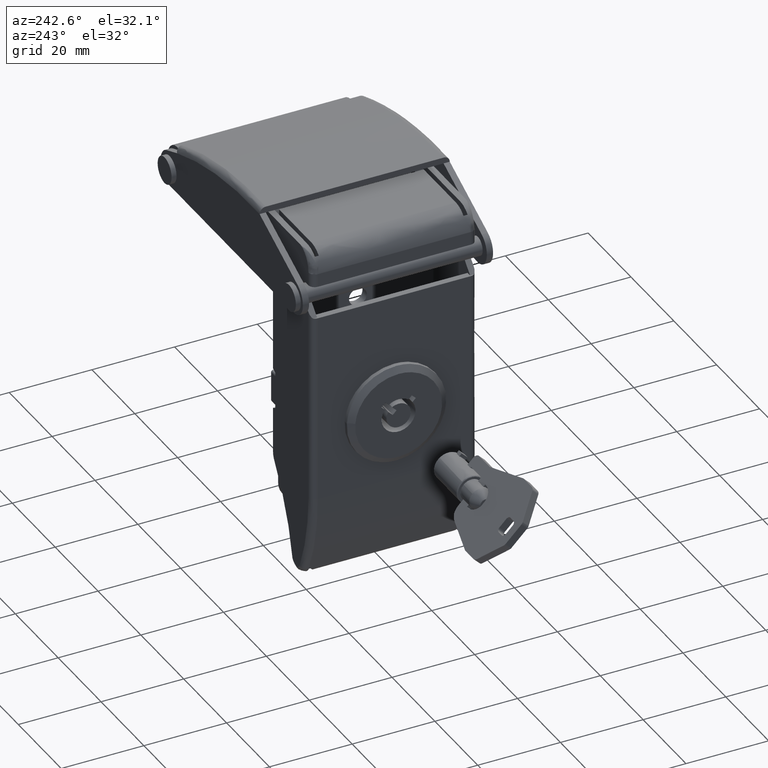
[diagram: clean part render]
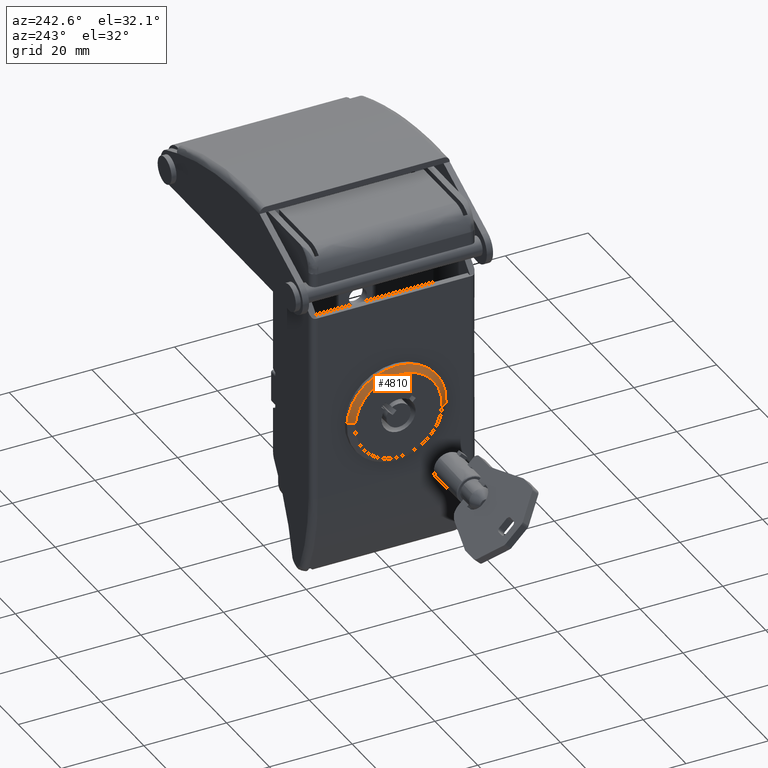
[diagram: same view with one face highlighted and labeled with its STEP entity id]
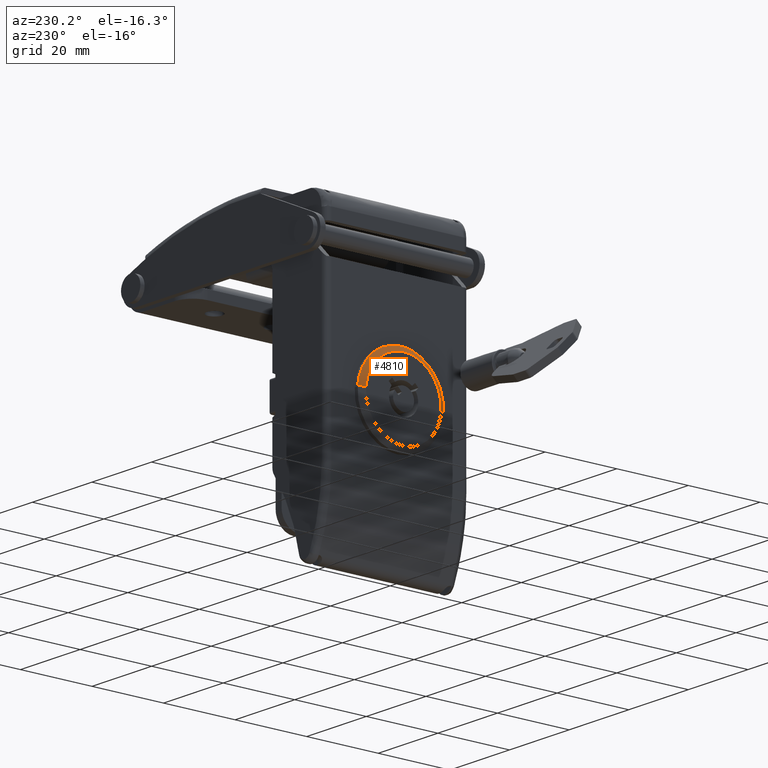
[diagram: same view with one face highlighted and labeled with its STEP entity id]
A machine part, auxiliary view. The second image highlights one B-rep face of the part: STEP entity #4810.
A second angle (auxiliary view) of the same face is appended — the face is thin or edge-on in the first view.
In plain terms, the highlighted face is a freeform B-spline surface patch.
Its self-contained STEP definition (entity closure, byte-faithful):
#4530=CARTESIAN_POINT('',(-4.500225952994209,1.008971E-011,-23.799992232592562));
#4531=VERTEX_POINT('',#4530);
#4532=CARTESIAN_POINT('',(-4.500225952972309,10.467632004220739,-33.476171727217277));
#4533=VERTEX_POINT('',#4532);
#4534=CARTESIAN_POINT('',(-4.500225952994209,1.008971E-011,-23.799992232592562));
#4535=CARTESIAN_POINT('',(-4.500225952983259,9.706100162223267,-23.799992232591272));
#4536=CARTESIAN_POINT('',(-4.500225952972309,10.467632004220732,-33.476171727217285));
#4544=(BOUNDED_CURVE()B_SPLINE_CURVE(2,(#4534,#4535,#4536),.UNSPECIFIED.,.F.,.U.)B_SPLINE_CURVE_WITH_KNOTS((3,3),(0.0,0.236331300629024),.UNSPECIFIED.)CURVE()GEOMETRIC_REPRESENTATION_ITEM()RATIONAL_B_SPLINE_CURVE((1.0,0.723120658609581,0.969723356164005))REPRESENTATION_ITEM(''));
#4545=EDGE_CURVE('',#4531,#4533,#4544,.T.);
#4564=CARTESIAN_POINT('',(-4.500225952972308,-10.467632004200560,-35.123812737963902));
#4565=VERTEX_POINT('',#4564);
#4579=CARTESIAN_POINT('',(-4.500225952972308,-10.467632004200564,-35.123812737963902));
#4580=CARTESIAN_POINT('',(-4.500225952972706,-10.500000000020092,-34.712538356288377));
#4581=CARTESIAN_POINT('',(-4.500225952973135,-10.500000000019460,-34.299992232593077));
#4582=CARTESIAN_POINT('',(-4.500225952984088,-10.500000000003084,-23.799992232593755));
#4583=CARTESIAN_POINT('',(-4.500225952994209,1.008971E-011,-23.799992232592562));
#4591=(BOUNDED_CURVE()B_SPLINE_CURVE(2,(#4579,#4580,#4581,#4582,#4583),.UNSPECIFIED.,.F.,.U.)B_SPLINE_CURVE_WITH_KNOTS((3,2,3),(0.736331300629025,0.750000000000000,1.0),.UNSPECIFIED.)CURVE()GEOMETRIC_REPRESENTATION_ITEM()RATIONAL_B_SPLINE_CURVE((0.969723356164006,0.983986122576967,1.0,0.707106781186547,1.0))REPRESENTATION_ITEM(''));
#4592=EDGE_CURVE('',#4565,#4531,#4591,.T.);
#4729=CARTESIAN_POINT('',(-4.525225952994290,10.430247604190971,-33.479113943538167));
#4730=CARTESIAN_POINT('',(-4.525225952994290,9.609369315138537,-23.048866339357293));
#4731=CARTESIAN_POINT('',(-4.525225952994290,-0.820878289042339,-23.869744628409720));
#4732=CARTESIAN_POINT('',(-4.525225952994290,-11.251125893223215,-24.690622917462143));
#4733=CARTESIAN_POINT('',(-4.525225952994290,-10.430247604170789,-35.120870521643027));
#4734=CARTESIAN_POINT('',(-3.474600952990917,12.001327014821140,-33.355467312364560));
#4735=CARTESIAN_POINT('',(-3.474600952990917,11.056802094595096,-21.354140297553514));
#4736=CARTESIAN_POINT('',(-3.474600952990917,-0.944524920215950,-22.298665217779551));
#4737=CARTESIAN_POINT('',(-3.474600952990917,-12.945851935026999,-23.243190138005591));
#4738=CARTESIAN_POINT('',(-3.474600952990917,-12.001327014800960,-35.244517152816627));
#4746=(BOUNDED_SURFACE()B_SPLINE_SURFACE(2,1,((#4729,#4734),(#4730,#4735),(#4731,#4736),(#4732,#4737),(#4733,#4738)),.UNSPECIFIED.,.F.,.F.,.U.)B_SPLINE_SURFACE_WITH_KNOTS((3,2,3),(2,2),(0.0,19.945936329120350,39.891872658240693),(0.0,1.0),.UNSPECIFIED.)GEOMETRIC_REPRESENTATION_ITEM()RATIONAL_B_SPLINE_SURFACE(((1.0,1.0),(0.707106781186548,0.707106781186548),(1.0,1.0),(0.707106781186548,0.707106781186548),(1.0,1.0)))REPRESENTATION_ITEM('')SURFACE());
#4747=CARTESIAN_POINT('',(-3.500225952991000,1.008971E-011,-22.299992232592459));
#4748=VERTEX_POINT('',#4747);
#4749=CARTESIAN_POINT('',(-3.500225952951760,11.963008004832091,-33.358483083440852));
#4750=VERTEX_POINT('',#4749);
#4751=CARTESIAN_POINT('',(-3.500225952991000,1.008971E-011,-22.299992232592459));
#4752=CARTESIAN_POINT('',(-3.500225952971381,11.092685899553787,-22.299992232590142));
#4753=CARTESIAN_POINT('',(-3.500225952951760,11.963008004832094,-33.358483083440852));
#4761=(BOUNDED_CURVE()B_SPLINE_CURVE(2,(#4751,#4752,#4753),.UNSPECIFIED.,.F.,.U.)B_SPLINE_CURVE_WITH_KNOTS((3,3),(0.0,0.236331300626875),.UNSPECIFIED.)CURVE()GEOMETRIC_REPRESENTATION_ITEM()RATIONAL_B_SPLINE_CURVE((1.0,0.723120658612099,0.969723356159521))REPRESENTATION_ITEM(''));
#4762=EDGE_CURVE('',#4748,#4750,#4761,.T.);
#4763=ORIENTED_EDGE('',*,*,#4762,.T.);
#4764=CARTESIAN_POINT('',(-4.500225952972309,10.467632004220739,-33.476171727217277));
#4765=CARTESIAN_POINT('',(-3.500225952951760,11.963008004832091,-33.358483083440852));
#4766=QUASI_UNIFORM_CURVE('',1,(#4764,#4765),.UNSPECIFIED.,.F.,.U.);
#4767=EDGE_CURVE('',#4533,#4750,#4766,.T.);
#4768=ORIENTED_EDGE('',*,*,#4767,.F.);
#4769=ORIENTED_EDGE('',*,*,#4545,.F.);
#4770=ORIENTED_EDGE('',*,*,#4592,.F.);
#4771=CARTESIAN_POINT('',(-3.500225952951759,-11.963008004811909,-35.241501381740349));
#4772=VERTEX_POINT('',#4771);
#4773=CARTESIAN_POINT('',(-4.500225952972308,-10.467632004200560,-35.123812737963902));
#4774=CARTESIAN_POINT('',(-3.500225952951759,-11.963008004811909,-35.241501381740349));
#4775=QUASI_UNIFORM_CURVE('',1,(#4773,#4774),.UNSPECIFIED.,.F.,.U.);
#4776=EDGE_CURVE('',#4565,#4772,#4775,.T.);
#4777=ORIENTED_EDGE('',*,*,#4776,.T.);
#4778=CARTESIAN_POINT('',(-3.500225952990999,-11.977617581046101,-35.032574707079952));
#4779=VERTEX_POINT('',#4778);
#4780=CARTESIAN_POINT('',(-3.500225952951759,-11.963008004811915,-35.241501381740349));
#4781=CARTESIAN_POINT('',(-3.500225952971379,-11.971224430664337,-35.137101792330654));
#4782=CARTESIAN_POINT('',(-3.500225952990999,-11.977617581046101,-35.032574707079952));
#4790=(BOUNDED_CURVE()B_SPLINE_CURVE(2,(#4780,#4781,#4782),.UNSPECIFIED.,.F.,.U.)B_SPLINE_CURVE_WITH_KNOTS((3,3),(0.736331300626875,0.739332962240943),.UNSPECIFIED.)CURVE()GEOMETRIC_REPRESENTATION_ITEM()RATIONAL_B_SPLINE_CURVE((0.969723356159521,0.972855475557967,0.976072041671004))REPRESENTATION_ITEM(''));
#4791=EDGE_CURVE('',#4772,#4779,#4790,.T.);
#4792=ORIENTED_EDGE('',*,*,#4791,.T.);
#4793=CARTESIAN_POINT('',(-3.500225952991000,-11.977617581046104,-35.032574707079959));
#4794=CARTESIAN_POINT('',(-3.500225952991000,-11.999999999988047,-34.666625392209298));
#4795=CARTESIAN_POINT('',(-3.500225952991000,-11.999999999988050,-34.299992232590597));
#4796=CARTESIAN_POINT('',(-3.500225952990999,-11.999999999988050,-22.299992232592452));
#4797=CARTESIAN_POINT('',(-3.500225952991000,1.008971E-011,-22.299992232592459));
#4805=(BOUNDED_CURVE()B_SPLINE_CURVE(2,(#4793,#4794,#4795,#4796,#4797),.UNSPECIFIED.,.F.,.U.)B_SPLINE_CURVE_WITH_KNOTS((3,2,3),(0.739332962240943,0.750000000000000,1.0),.UNSPECIFIED.)CURVE()GEOMETRIC_REPRESENTATION_ITEM()RATIONAL_B_SPLINE_CURVE((0.976072041671004,0.987502787902180,1.0,0.707106781186547,1.0))REPRESENTATION_ITEM(''));
#4806=EDGE_CURVE('',#4779,#4748,#4805,.T.);
#4807=ORIENTED_EDGE('',*,*,#4806,.T.);
#4808=EDGE_LOOP('',(#4763,#4768,#4769,#4770,#4777,#4792,#4807));
#4809=FACE_OUTER_BOUND('',#4808,.T.);
#4810=ADVANCED_FACE('',(#4809),#4746,.T.);